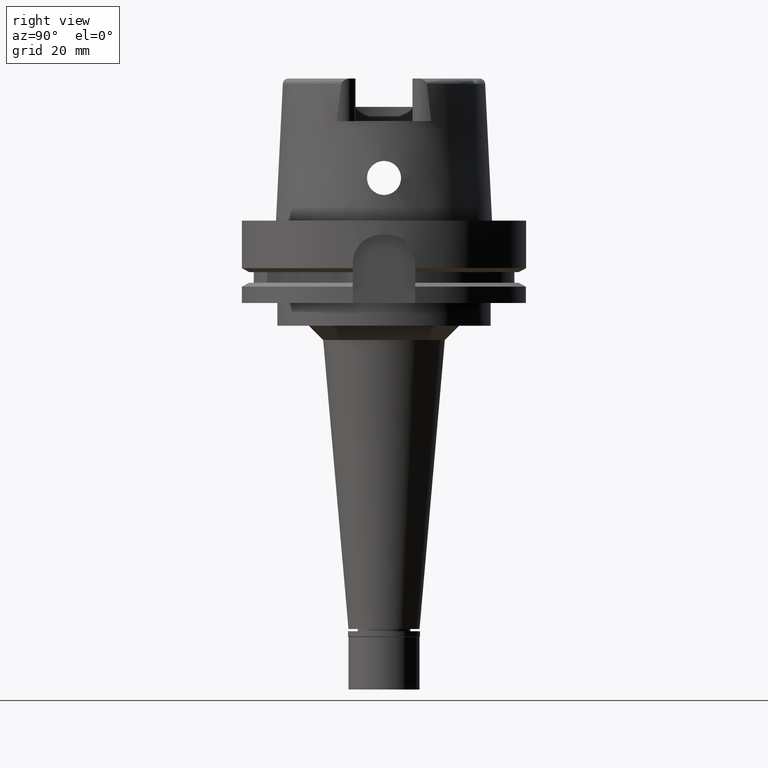
[diagram: clean part render]
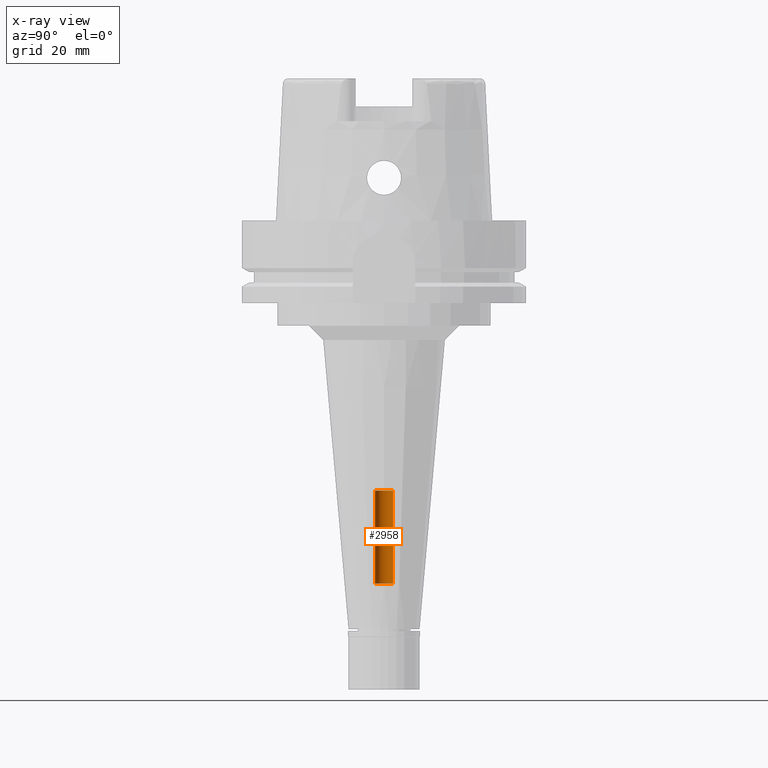
[diagram: x-ray — body ghosted, one internal face saturated and labeled with its STEP entity id]
A machine part, right view, then the same camera in x-ray: the body is ghosted and one INTERNAL B-rep face — a face not visible from any outside direction — is saturated and labeled: STEP entity #2958.
In plain terms, the highlighted cylindrical surface (edge-blend (fillet) strip) has radius 3.2 mm, axis along (0, 0, 1).
Its self-contained STEP definition (entity closure, byte-faithful):
#76 = EDGE_LOOP ( 'NONE', ( #2946, #4720, #2494, #812 ) ) ;
#133 = CARTESIAN_POINT ( 'NONE',  ( 0.0000000000000000000, 0.0000000000000000000, -169.2400000000000091 ) ) ;
#222 = VECTOR ( 'NONE', #2533, 1000.000000000000000 ) ;
#388 = CARTESIAN_POINT ( 'NONE',  ( 0.0000000000000000000, 3.200000000000000178, -95.00000000000000000 ) ) ;
#524 = DIRECTION ( 'NONE',  ( 0.0000000000000000000, 1.000000000000000000, 0.0000000000000000000 ) ) ;
#756 = CIRCLE ( 'NONE', #3724, 3.200000000000000178 ) ;
#758 = CIRCLE ( 'NONE', #1306, 3.200000000000000178 ) ;
#812 = ORIENTED_EDGE ( 'NONE', *, *, #2067, .T. ) ;
#999 = EDGE_CURVE ( 'NONE', #3487, #2498, #3846, .T. ) ;
#1189 = DIRECTION ( 'NONE',  ( 0.0000000000000000000, -1.000000000000000000, 0.0000000000000000000 ) ) ;
#1227 = DIRECTION ( 'NONE',  ( 0.0000000000000000000, 0.0000000000000000000, 1.000000000000000000 ) ) ;
#1306 = AXIS2_PLACEMENT_3D ( 'NONE', #1611, #4988, #1189 ) ;
#1347 = EDGE_CURVE ( 'NONE', #3487, #3965, #758, .T. ) ;
#1484 = DIRECTION ( 'NONE',  ( 0.0000000000000000000, 0.0000000000000000000, 1.000000000000000000 ) ) ;
#1611 = CARTESIAN_POINT ( 'NONE',  ( 0.0000000000000000000, 0.0000000000000000000, -127.7999999999999972 ) ) ;
#1829 = CYLINDRICAL_SURFACE ( 'NONE', #3196, 3.200000000000000178 ) ;
#1927 = VECTOR ( 'NONE', #1227, 1000.000000000000000 ) ;
#2067 = EDGE_CURVE ( 'NONE', #3965, #5538, #4189, .T. ) ;
#2273 = FACE_OUTER_BOUND ( 'NONE', #76, .T. ) ;
#2358 = CARTESIAN_POINT ( 'NONE',  ( 0.0000000000000000000, 3.200000000000000178, -127.7999999999999972 ) ) ;
#2494 = ORIENTED_EDGE ( 'NONE', *, *, #1347, .T. ) ;
#2498 = VERTEX_POINT ( 'NONE', #4245 ) ;
#2533 = DIRECTION ( 'NONE',  ( 0.0000000000000000000, 0.0000000000000000000, 1.000000000000000000 ) ) ;
#2774 = DIRECTION ( 'NONE',  ( 0.0000000000000000000, 1.000000000000000000, 0.0000000000000000000 ) ) ;
#2946 = ORIENTED_EDGE ( 'NONE', *, *, #4885, .T. ) ;
#2952 = CARTESIAN_POINT ( 'NONE',  ( 0.0000000000000000000, 3.200000000000000178, -127.7999999999999972 ) ) ;
#2958 = ADVANCED_FACE ( 'NONE', ( #2273 ), #1829, .F. ) ;
#3196 = AXIS2_PLACEMENT_3D ( 'NONE', #133, #1484, #2774 ) ;
#3487 = VERTEX_POINT ( 'NONE', #3728 ) ;
#3513 = CARTESIAN_POINT ( 'NONE',  ( 0.0000000000000000000, 0.0000000000000000000, -95.00000000000000000 ) ) ;
#3724 = AXIS2_PLACEMENT_3D ( 'NONE', #3513, #5260, #524 ) ;
#3728 = CARTESIAN_POINT ( 'NONE',  ( 0.0000000000000000000, -3.200000000000000178, -127.7999999999999972 ) ) ;
#3846 = LINE ( 'NONE', #5081, #1927 ) ;
#3965 = VERTEX_POINT ( 'NONE', #2358 ) ;
#4189 = LINE ( 'NONE', #2952, #222 ) ;
#4245 = CARTESIAN_POINT ( 'NONE',  ( 0.0000000000000000000, -3.200000000000000178, -95.00000000000000000 ) ) ;
#4720 = ORIENTED_EDGE ( 'NONE', *, *, #999, .F. ) ;
#4885 = EDGE_CURVE ( 'NONE', #5538, #2498, #756, .T. ) ;
#4988 = DIRECTION ( 'NONE',  ( 0.0000000000000000000, 0.0000000000000000000, -1.000000000000000000 ) ) ;
#5081 = CARTESIAN_POINT ( 'NONE',  ( 0.0000000000000000000, -3.200000000000000178, -127.7999999999999972 ) ) ;
#5260 = DIRECTION ( 'NONE',  ( 0.0000000000000000000, 0.0000000000000000000, 1.000000000000000000 ) ) ;
#5538 = VERTEX_POINT ( 'NONE', #388 ) ;